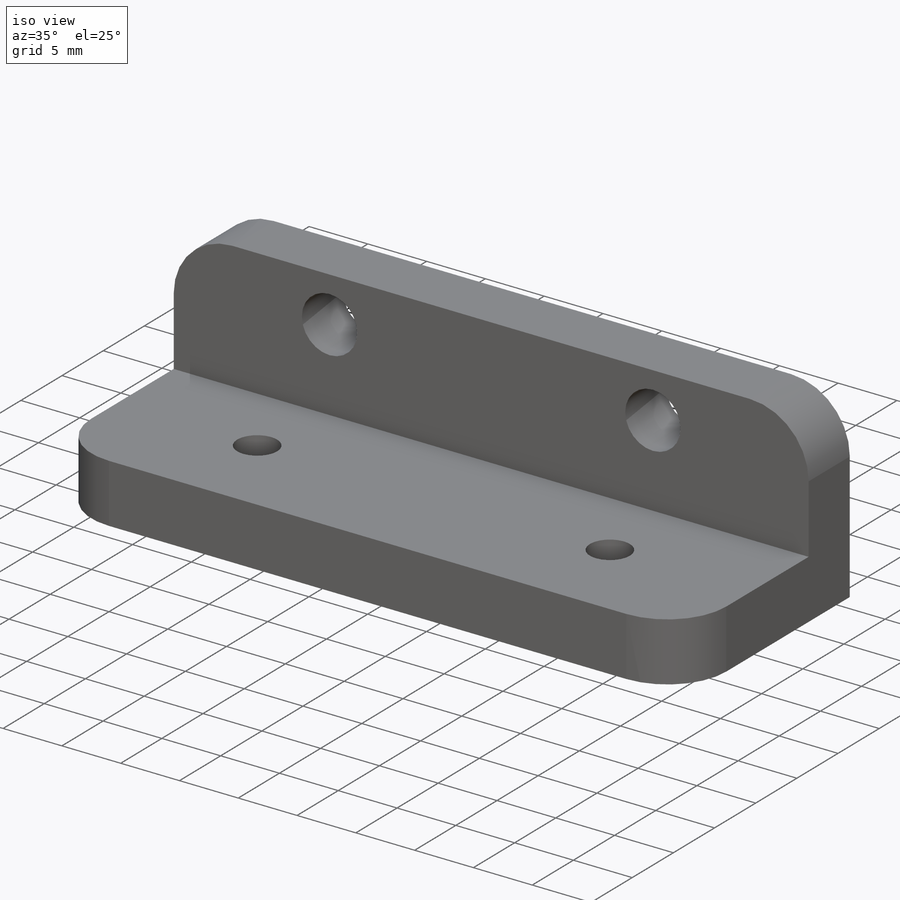
[diagram: iso view]
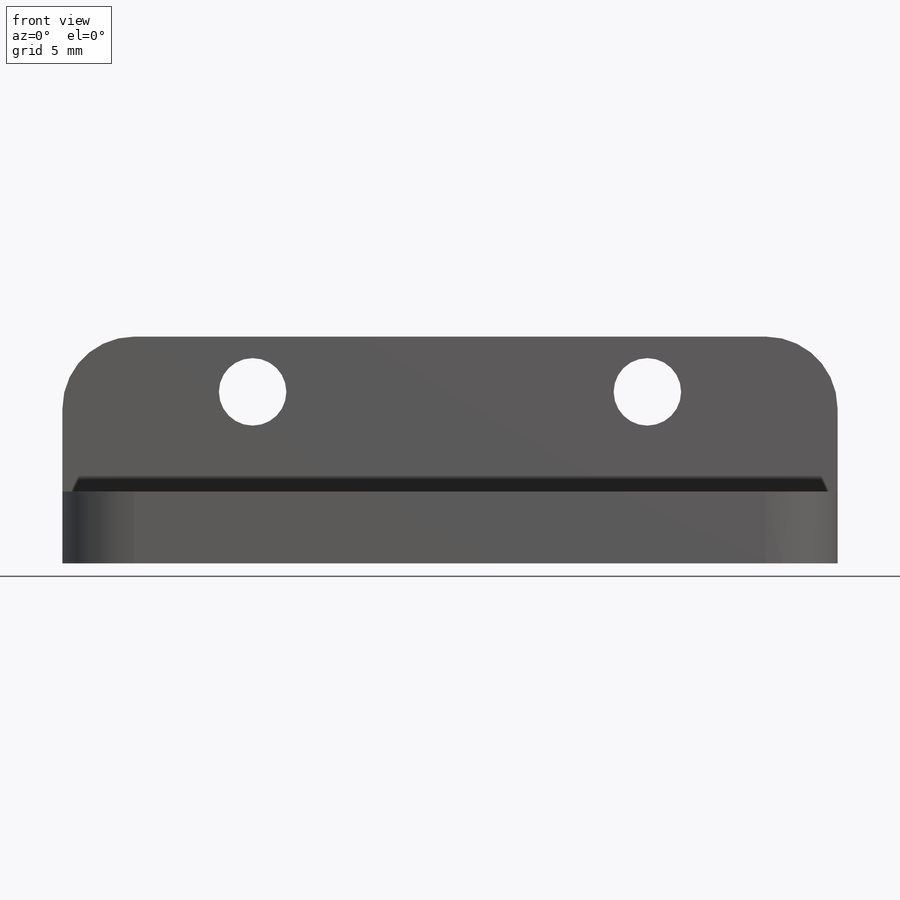
[diagram: front view]
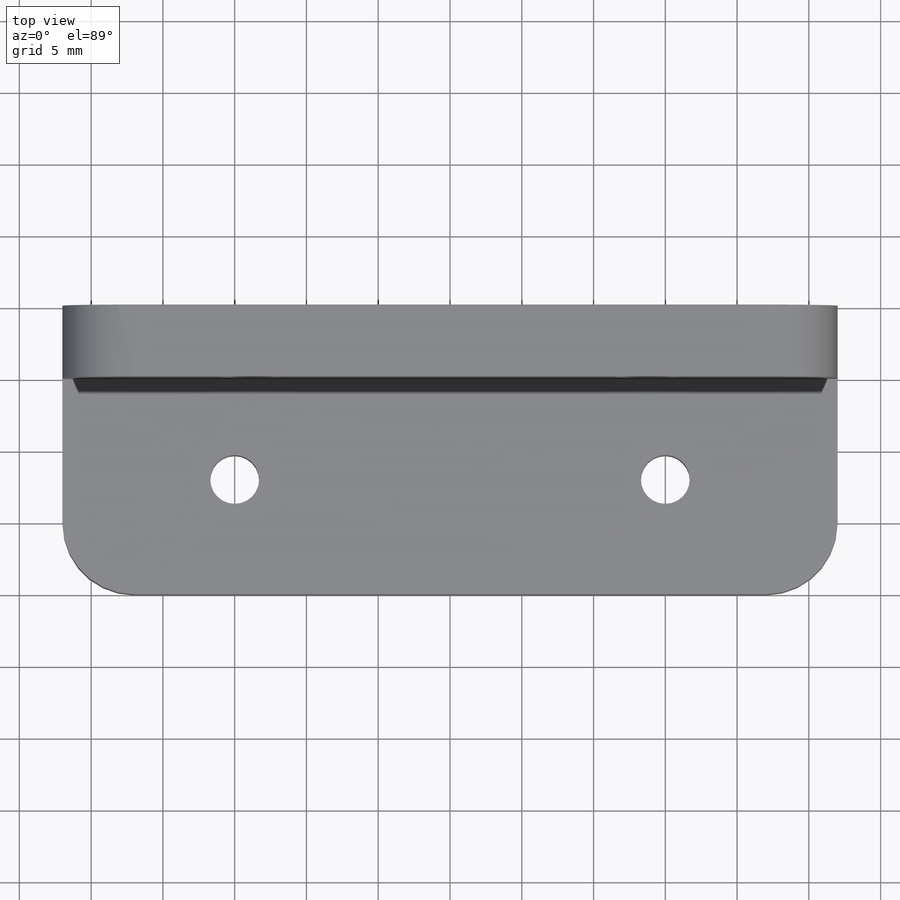
[diagram: top view]
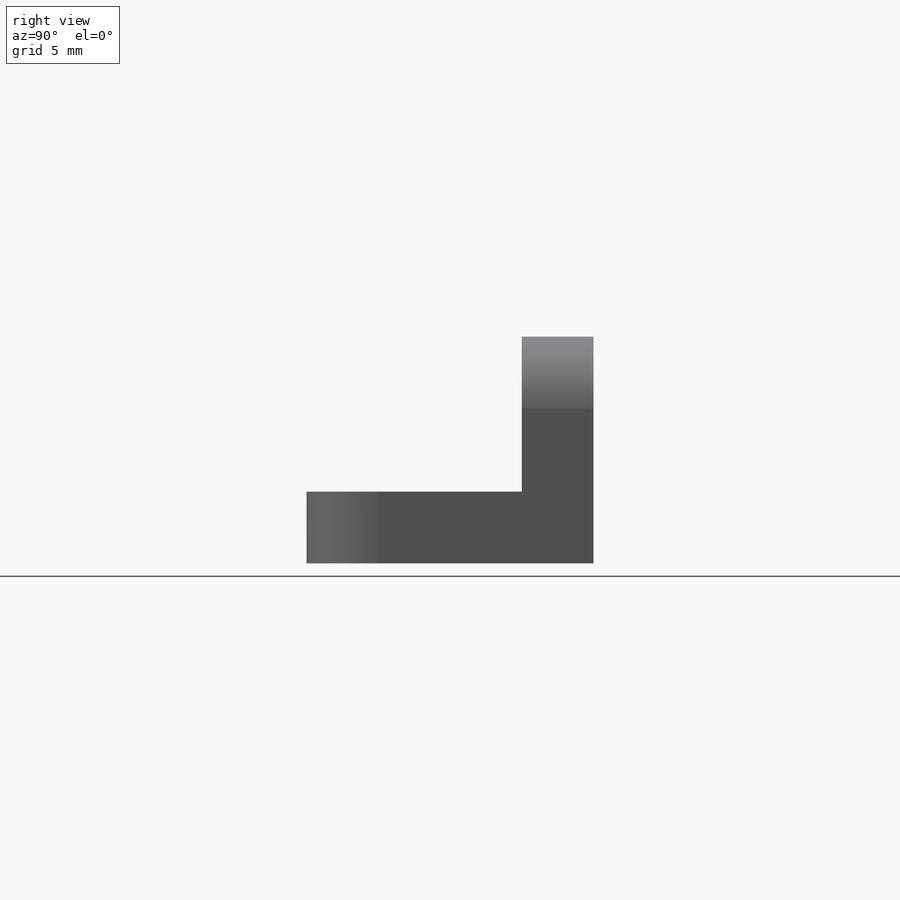
[diagram: right view]
SOLIDWORKS PART (.sldprt)
format: sldprt  version: not decoded by parser v0  size: 245,760 bytes
history: native  units: mm
features: sketch x8, extrude x2, hole x2, cut_extrude x2, material x1, fillet x1 (+12 scaffold rows collapsed)
feature tree (28):
  scaffold x12  (default folders/planes/origin — collapsed)
  material  "Material <not specified>"
  sketch  "Sketch1"  dims[D1=54.0mm D2=20.0mm]
  extrude  "Boss-Extrude1"  Depth=5mm
  sketch  "Sketch2"  dims[D1=5.0mm]
  extrude  "Boss-Extrude2"  Depth=10.8mm
  hole  "M3 Clearance Hole1"  Diameter=3.4mm Depth=28.71mm
  sketch  "Sketch4"  dims[D1=3.2mm D2=3.2mm D3=13.25mm D4=27.5mm D5=4.4mm]
  sketch  "Sketch3"  dims[hole-wizard template sketch: 47 standard entries collapsed; hole parameters kept: c15.Hole Depth=28.71mm c15.D3=~14.816244mm c15.Drill Angle=118.0deg]
  hole  "M3 Clearance Hole2"  Diameter=3.4mm Depth=5mm
  sketch  "Sketch8"  dims[D1=8.0mm D2=8.0mm D3=30.0mm D4=12.0mm]
  sketch  "Sketch7"  dims[hole-wizard template sketch: 61 standard entries collapsed; hole parameters above]
  fillet  "Fillet1"  Radius=5mm
  sketch  "Sketch9"  dims[c1.D1=2.35mm c1.D2=~2.356554mm c2.D1=2.35mm c2.D2=13.25mm c3.D1=3.85mm c3.D2=13.25mm]
  sketch  "Sketch11"  dims[c1.D1=13.25mm c1.D2=2.35mm c2.D1=3.85mm c2.D2=13.25mm]
  cut_extrude  "Cut-Extrude4"  Depth=7.8mm
  cut_extrude  "Cut-Extrude5"  Depth=7.8mm
decode coverage: 15 of 15 modeling features carry decoded parameters
note: ~ marks probable driven/reference dimensions
note: suppression state not decoded; provenance and decode notes live in map.json
